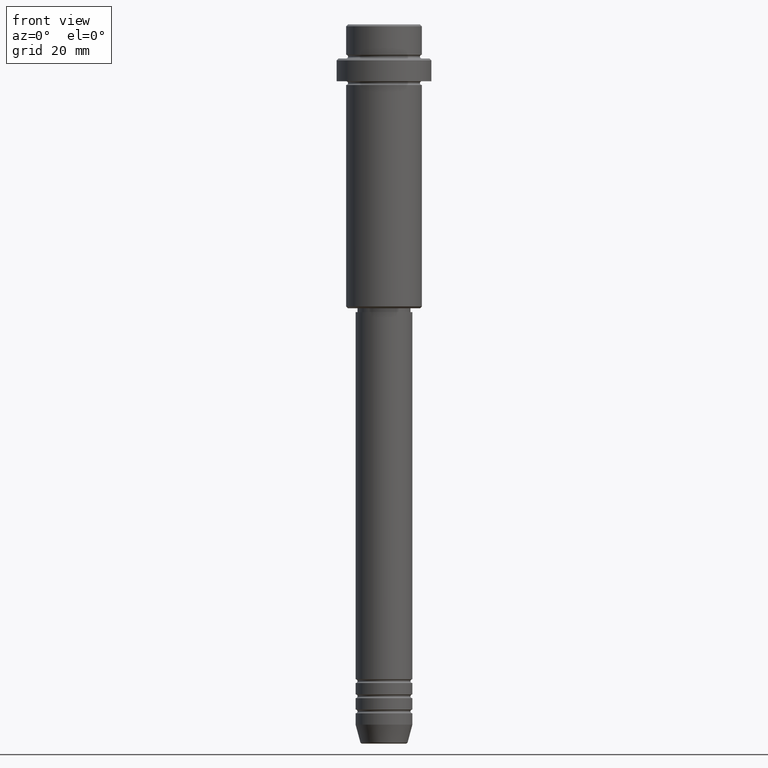
[diagram: clean part render]
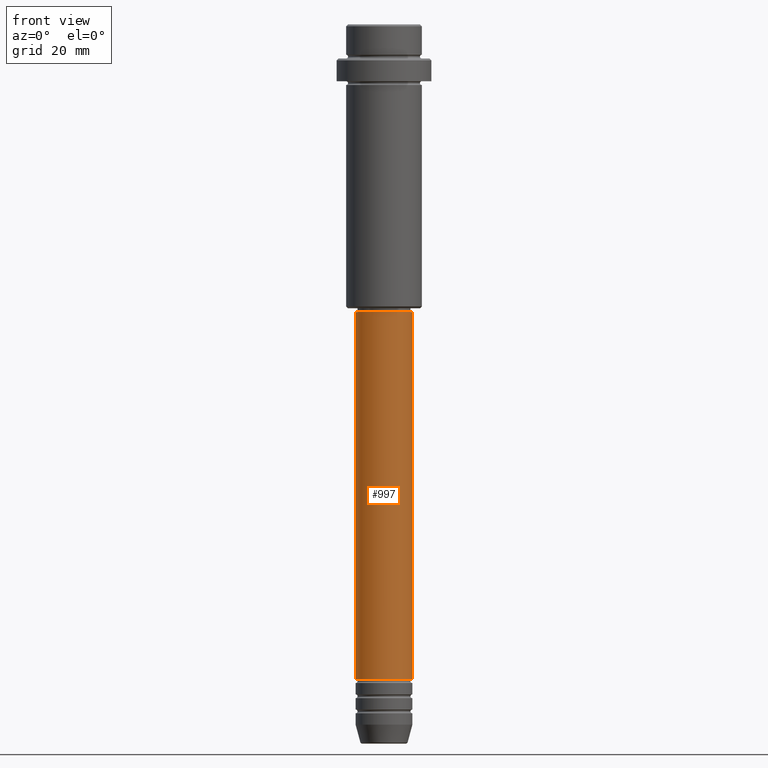
[diagram: same view with one face highlighted and labeled with its STEP entity id]
A machine part, front view. The second image highlights one B-rep face of the part: STEP entity #997.
In plain terms, the highlighted cylindrical surface (edge-blend (fillet) strip) has radius 7.5 mm, axis along (-0, -0, 1).
Its self-contained STEP definition (entity closure, byte-faithful):
#27 = CARTESIAN_POINT ( 'NONE',  ( 0.000000000000000000, 0.000000000000000000, 0.000000000000000000 ) ) ;
#51 = CARTESIAN_POINT ( 'NONE',  ( 7.500000000000000000, 0.000000000000000000, 0.000000000000000000 ) ) ;
#61 = CIRCLE ( 'NONE', #236, 7.500000000000000000 ) ;
#125 = EDGE_CURVE ( 'NONE', #882, #526, #646, .T. ) ;
#131 = EDGE_LOOP ( 'NONE', ( #1285, #181, #693, #1184 ) ) ;
#157 = DIRECTION ( 'NONE',  ( 1.000000000000000000, 0.000000000000000000, 0.000000000000000000 ) ) ;
#179 = CARTESIAN_POINT ( 'NONE',  ( -7.500000000000000000, 9.184850993605147944E-16, -76.00000000000001421 ) ) ;
#181 = ORIENTED_EDGE ( 'NONE', *, *, #125, .T. ) ;
#236 = AXIS2_PLACEMENT_3D ( 'NONE', #941, #1287, #1047 ) ;
#238 = AXIS2_PLACEMENT_3D ( 'NONE', #27, #995, #460 ) ;
#265 = DIRECTION ( 'NONE',  ( -0.000000000000000000, -0.000000000000000000, 1.000000000000000000 ) ) ;
#287 = VERTEX_POINT ( 'NONE', #179 ) ;
#300 = VERTEX_POINT ( 'NONE', #619 ) ;
#346 = CARTESIAN_POINT ( 'NONE',  ( -7.500000000000000000, 9.184850993605147944E-16, -172.9999999999999147 ) ) ;
#460 = DIRECTION ( 'NONE',  ( 1.000000000000000000, 0.000000000000000000, 0.000000000000000000 ) ) ;
#474 = CARTESIAN_POINT ( 'NONE',  ( 7.500000000000000000, 0.000000000000000000, -172.9999999999999147 ) ) ;
#517 = LINE ( 'NONE', #640, #1349 ) ;
#526 = VERTEX_POINT ( 'NONE', #474 ) ;
#569 = FACE_OUTER_BOUND ( 'NONE', #131, .T. ) ;
#619 = CARTESIAN_POINT ( 'NONE',  ( 7.500000000000000000, 0.000000000000000000, -76.00000000000001421 ) ) ;
#633 = EDGE_CURVE ( 'NONE', #526, #300, #1120, .T. ) ;
#640 = CARTESIAN_POINT ( 'NONE',  ( -7.500000000000000000, 9.184850993605147944E-16, 0.000000000000000000 ) ) ;
#646 = CIRCLE ( 'NONE', #827, 7.500000000000000000 ) ;
#693 = ORIENTED_EDGE ( 'NONE', *, *, #633, .T. ) ;
#698 = VECTOR ( 'NONE', #265, 1000.000000000000000 ) ;
#707 = EDGE_CURVE ( 'NONE', #287, #300, #61, .T. ) ;
#805 = EDGE_CURVE ( 'NONE', #882, #287, #517, .T. ) ;
#827 = AXIS2_PLACEMENT_3D ( 'NONE', #1379, #1021, #157 ) ;
#882 = VERTEX_POINT ( 'NONE', #346 ) ;
#941 = CARTESIAN_POINT ( 'NONE',  ( 0.000000000000000000, 0.000000000000000000, -76.00000000000001421 ) ) ;
#995 = DIRECTION ( 'NONE',  ( -0.000000000000000000, -0.000000000000000000, 1.000000000000000000 ) ) ;
#997 = ADVANCED_FACE ( 'NONE', ( #569 ), #1328, .T. ) ;
#1021 = DIRECTION ( 'NONE',  ( -0.000000000000000000, -0.000000000000000000, 1.000000000000000000 ) ) ;
#1047 = DIRECTION ( 'NONE',  ( 1.000000000000000000, 0.000000000000000000, 0.000000000000000000 ) ) ;
#1120 = LINE ( 'NONE', #51, #698 ) ;
#1184 = ORIENTED_EDGE ( 'NONE', *, *, #707, .F. ) ;
#1285 = ORIENTED_EDGE ( 'NONE', *, *, #805, .F. ) ;
#1287 = DIRECTION ( 'NONE',  ( -0.000000000000000000, -0.000000000000000000, 1.000000000000000000 ) ) ;
#1328 = CYLINDRICAL_SURFACE ( 'NONE', #238, 7.500000000000000000 ) ;
#1349 = VECTOR ( 'NONE', #1407, 1000.000000000000000 ) ;
#1379 = CARTESIAN_POINT ( 'NONE',  ( 0.000000000000000000, 0.000000000000000000, -172.9999999999999147 ) ) ;
#1407 = DIRECTION ( 'NONE',  ( -0.000000000000000000, -0.000000000000000000, 1.000000000000000000 ) ) ;